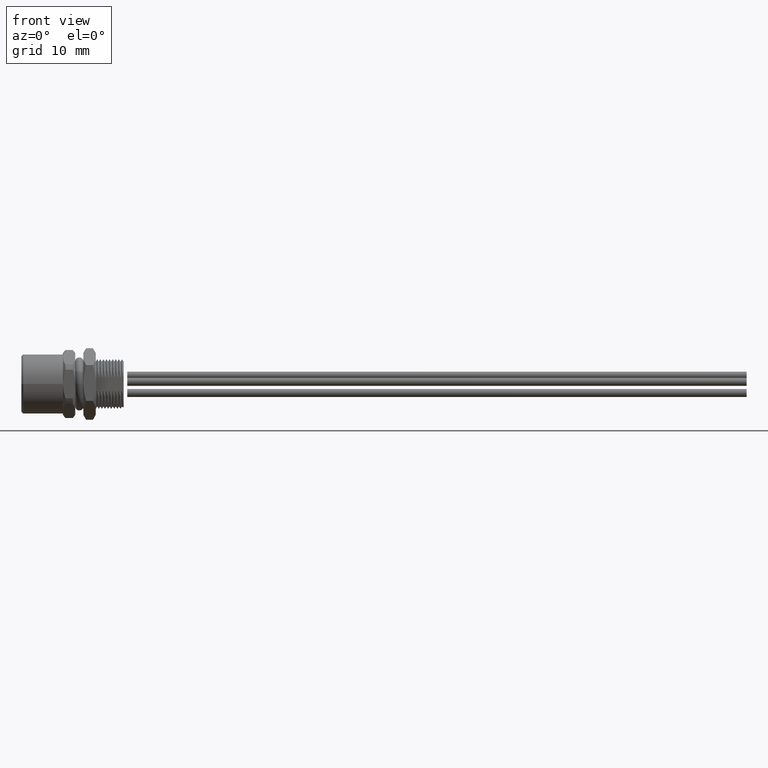
[diagram: clean part render]
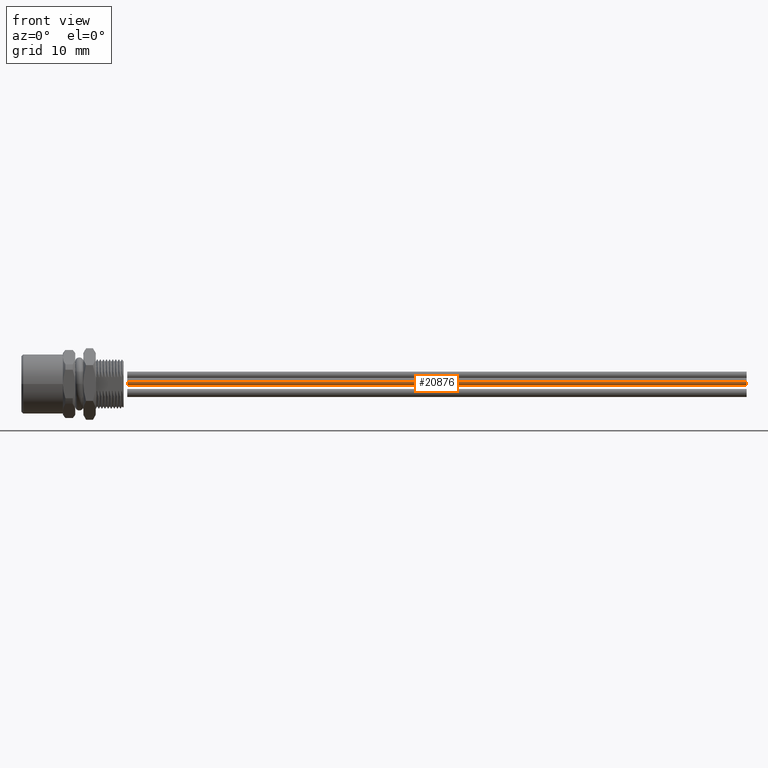
[diagram: same view with one face highlighted and labeled with its STEP entity id]
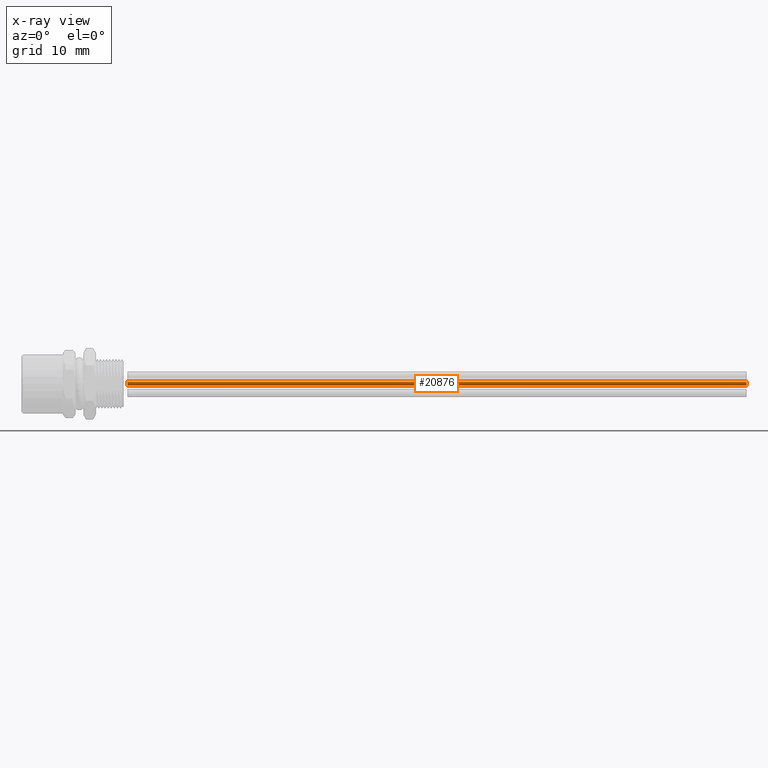
[diagram: x-ray of the same camera — body ghosted, the highlighted face saturated]
A machine part, front view. The second image highlights one B-rep face of the part: STEP entity #20876.
The next image is the same camera in x-ray: the body ghosted, the highlighted face saturated — about 0% of this face is hidden behind the body in this view.
In plain terms, the highlighted cylindrical surface (edge-blend (fillet) strip) has radius 0.65 mm, axis along (-1, 0, 0).
Its self-contained STEP definition (entity closure, byte-faithful):
#20806=CARTESIAN_POINT('',(4.346456692913E0,-6.692913385827E-2,
1.377952755906E-2));
#20807=DIRECTION('',(-1.E0,0.E0,0.E0));
#20808=DIRECTION('',(0.E0,1.E0,0.E0));
#20809=AXIS2_PLACEMENT_3D('',#20806,#20807,#20808);
#20811=DIRECTION('',(-1.E0,0.E0,0.E0));
#20812=VECTOR('',#20811,3.937007874016E0);
#20813=CARTESIAN_POINT('',(4.346456692913E0,-9.251968503937E-2,
1.377952755906E-2));
#20814=LINE('',#20813,#20812);
#20815=DIRECTION('',(-1.E0,0.E0,0.E0));
#20816=VECTOR('',#20815,3.937007874016E0);
#20817=CARTESIAN_POINT('',(4.346456692913E0,-4.133858267717E-2,
1.377952755906E-2));
#20818=LINE('',#20817,#20816);
#20824=CARTESIAN_POINT('',(4.094488188976E-1,-6.692913385827E-2,
1.377952755906E-2));
#20825=DIRECTION('',(-1.E0,0.E0,0.E0));
#20826=DIRECTION('',(0.E0,1.E0,0.E0));
#20827=AXIS2_PLACEMENT_3D('',#20824,#20825,#20826);
#20829=CARTESIAN_POINT('',(4.346456692913E0,-9.251968503937E-2,
1.377952755906E-2));
#20830=CARTESIAN_POINT('',(4.346456692913E0,-4.133858267717E-2,
1.377952755906E-2));
#20831=VERTEX_POINT('',#20829);
#20832=VERTEX_POINT('',#20830);
#20833=CARTESIAN_POINT('',(4.094488188976E-1,-9.251968503937E-2,
1.377952755906E-2));
#20834=CARTESIAN_POINT('',(4.094488188976E-1,-4.133858267717E-2,
1.377952755906E-2));
#20835=VERTEX_POINT('',#20833);
#20836=VERTEX_POINT('',#20834);
#20864=CARTESIAN_POINT('',(4.346456692913E0,-6.692913385827E-2,
1.377952755906E-2));
#20865=DIRECTION('',(-1.E0,0.E0,0.E0));
#20866=DIRECTION('',(0.E0,-1.E0,0.E0));
#20867=AXIS2_PLACEMENT_3D('',#20864,#20865,#20866);
#20868=CYLINDRICAL_SURFACE('',#20867,2.559055118110E-2);
#20869=ORIENTED_EDGE('',*,*,#20844,.F.);
#20870=ORIENTED_EDGE('',*,*,#20859,.T.);
#20872=ORIENTED_EDGE('',*,*,#20871,.T.);
#20873=ORIENTED_EDGE('',*,*,#20855,.F.);
#20874=EDGE_LOOP('',(#20869,#20870,#20872,#20873));
#20875=FACE_OUTER_BOUND('',#20874,.F.);
#20876=ADVANCED_FACE('',(#20875),#20868,.T.);
#20810=CIRCLE('',#20809,2.559055118110E-2);
#20828=CIRCLE('',#20827,2.559055118110E-2);
#20844=EDGE_CURVE('',#20832,#20831,#20810,.T.);
#20855=EDGE_CURVE('',#20831,#20835,#20814,.T.);
#20859=EDGE_CURVE('',#20832,#20836,#20818,.T.);
#20871=EDGE_CURVE('',#20836,#20835,#20828,.T.);